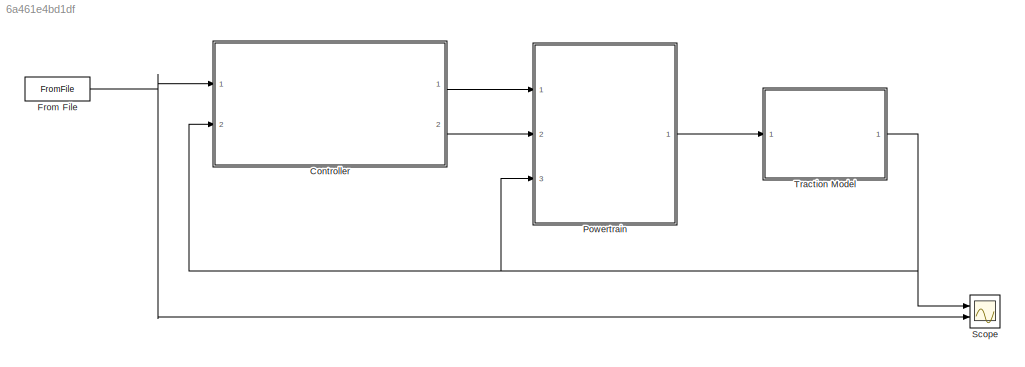
MODEL slx_6a461e4bd1df
KIND model
CONFIG AbsTol = auto
CONFIG EnableMultiTasking = off
CONFIG FixedStep = auto
CONFIG MaxStep = auto
CONFIG MinStep = auto
CONFIG RelTol = 1e-3
CONFIG SampleTimeConstraint = Unconstrained
CONFIG Solver = VariableStepAuto
CONFIG SolverName = VariableStepAuto
CONFIG StartTime = 0.0
CONFIG StopTime = 240
BLOCK [ModelReference] Controller
  ModelNameDialog = Controller.slx
  ModelReferenceVersion = 1.2
  Ports = [2, 2]
BLOCK [FromFile] From File
  FileName = DriveCycle1.mat
  SampleTime = 0
BLOCK [ModelReference] Powertrain
  ModelNameDialog = Powertrain.slx
  ModelReferenceVersion = 1.7
  Ports = [3, 1]
BLOCK [Scope] Scope
  Floating = off
  NumInputPorts = 2
  Ports = [2]
  ScopeSpecificationString = Simulink.scopes.TimeScopeBlockCfg('CurrentConfiguration', extmgr.ConfigurationSet(extmgr.Configuration('Core','General UI',true),extmgr.Configuration('Core','Source UI',true),extmgr.Configuration('Sources','WiredSimulink',true),extmgr.Configuration('Visuals','Time Domain',true,'SerializedDisplays',{struct('MinYLimReal','-4.22619','MaxYLimReal','38.03575','YLabelReal','','MinYLimMag','0.00000','Max...<+1354ch>
BLOCK [ModelReference] Traction Model
  ModelNameDialog = Traction_Model.slx
  ModelReferenceVersion = 1.17
  Ports = [1, 1]
LINE Controller:1 -> Powertrain:1
LINE Controller:2 -> Powertrain:2
NET From File:1 -> Controller:1, Scope:2
LINE Powertrain:1 -> Traction Model:1
NET Traction Model:1 -> Controller:2, Powertrain:3, Scope:1
note: NET lines group one-source signal fan-out (src -> all destinations, sorted); 1:1 wires keep LINE
